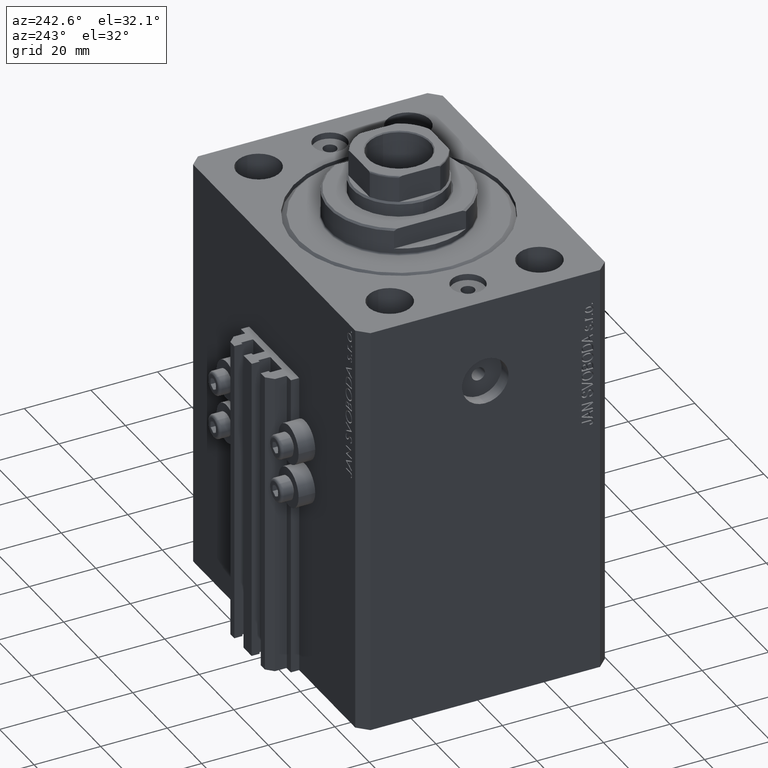
[diagram: clean part render]
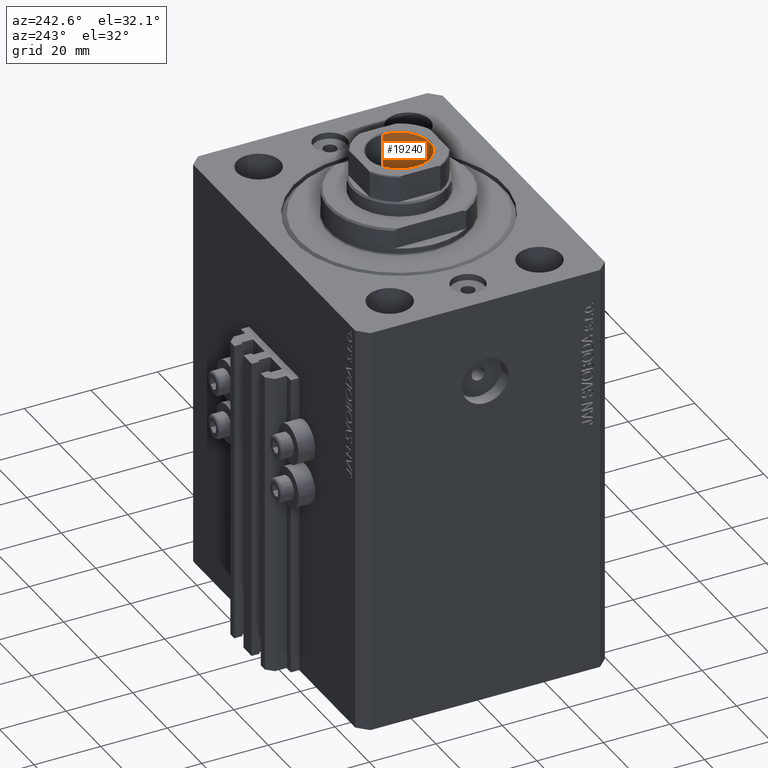
[diagram: same view with one face highlighted and labeled with its STEP entity id]
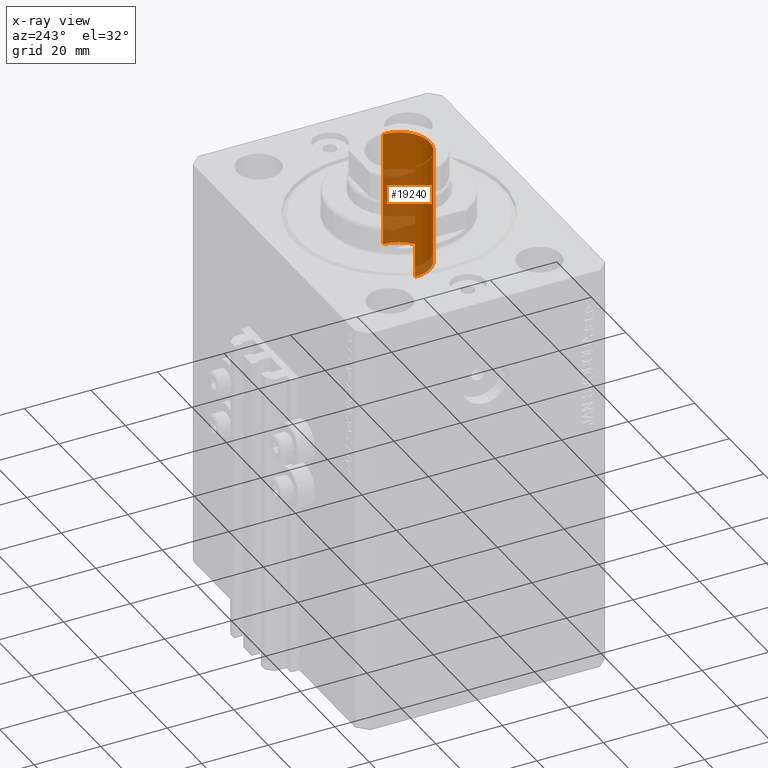
[diagram: x-ray of the same camera — body ghosted, the highlighted face saturated]
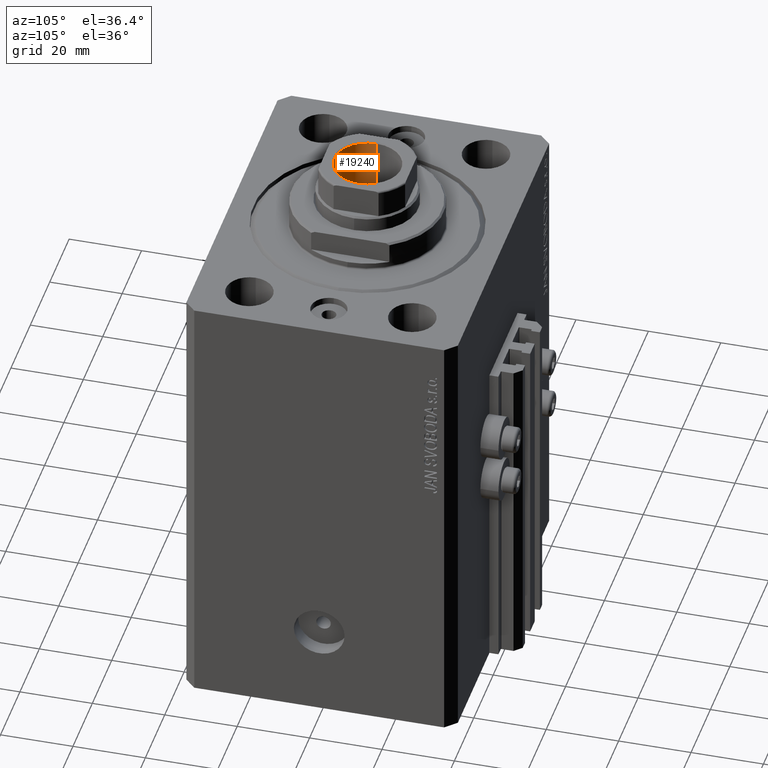
[diagram: same view with one face highlighted and labeled with its STEP entity id]
A machine part, auxiliary view. The second image highlights one B-rep face of the part: STEP entity #19240.
The next image is the same camera in x-ray: the body ghosted, the highlighted face saturated — about 43% of this face is hidden behind the body in this view.
A second angle (auxiliary view) of the same face is appended — the face is thin or edge-on in the first view.
In plain terms, the highlighted cylindrical surface (edge-blend (fillet) strip) has radius 9.25 mm, axis along (0, 0, 1).
Its self-contained STEP definition (entity closure, byte-faithful):
#1257 = DIRECTION ( 'NONE',  ( 0.000000000000000000, 0.000000000000000000, 1.000000000000000000 ) ) ;
#3378 = CARTESIAN_POINT ( 'NONE',  ( 0.000000000000000000, 0.000000000000000000, 133.0999999999999943 ) ) ;
#5438 = ORIENTED_EDGE ( 'NONE', *, *, #10888, .T. ) ;
#7353 = DIRECTION ( 'NONE',  ( 1.000000000000000000, 0.000000000000000000, 0.000000000000000000 ) ) ;
#7636 = EDGE_LOOP ( 'NONE', ( #15118, #5438, #16871, #27750 ) ) ;
#8355 = VERTEX_POINT ( 'NONE', #11924 ) ;
#10303 = DIRECTION ( 'NONE',  ( 1.000000000000000000, 0.000000000000000000, 0.000000000000000000 ) ) ;
#10888 = EDGE_CURVE ( 'NONE', #28634, #8355, #43566, .T. ) ;
#10896 = CARTESIAN_POINT ( 'NONE',  ( 9.249999999999994671, 0.000000000000000000, 98.09999999999999432 ) ) ;
#10902 = CARTESIAN_POINT ( 'NONE',  ( -9.249999999999994671, 1.132798289211300909E-15, 98.09999999999999432 ) ) ;
#11924 = CARTESIAN_POINT ( 'NONE',  ( -9.249999999999996447, 1.132798289211301304E-15, 132.8000000000000114 ) ) ;
#12287 = AXIS2_PLACEMENT_3D ( 'NONE', #3378, #40360, #10303 ) ;
#14288 = CARTESIAN_POINT ( 'NONE',  ( 0.000000000000000000, 0.000000000000000000, 98.09999999999999432 ) ) ;
#14979 = EDGE_CURVE ( 'NONE', #8355, #17881, #15148, .T. ) ;
#15118 = ORIENTED_EDGE ( 'NONE', *, *, #32531, .F. ) ;
#15148 = CIRCLE ( 'NONE', #27341, 9.249999999999996447 ) ;
#16303 = CARTESIAN_POINT ( 'NONE',  ( 9.249999999999996447, 0.000000000000000000, 133.0999999999999943 ) ) ;
#16782 = EDGE_CURVE ( 'NONE', #33753, #17881, #37784, .T. ) ;
#16871 = ORIENTED_EDGE ( 'NONE', *, *, #14979, .T. ) ;
#17881 = VERTEX_POINT ( 'NONE', #18045 ) ;
#17938 = VECTOR ( 'NONE', #18027, 1000.000000000000000 ) ;
#18027 = DIRECTION ( 'NONE',  ( -0.000000000000000000, -0.000000000000000000, 1.000000000000000000 ) ) ;
#18045 = CARTESIAN_POINT ( 'NONE',  ( 9.249999999999996447, 0.000000000000000000, 132.8000000000000114 ) ) ;
#19240 = ADVANCED_FACE ( 'NONE', ( #32968 ), #25791, .F. ) ;
#22296 = CARTESIAN_POINT ( 'NONE',  ( -9.249999999999996447, 1.132798289211301304E-15, 133.0999999999999943 ) ) ;
#25791 = CYLINDRICAL_SURFACE ( 'NONE', #12287, 9.249999999999996447 ) ;
#27341 = AXIS2_PLACEMENT_3D ( 'NONE', #30848, #1257, #41355 ) ;
#27412 = CIRCLE ( 'NONE', #45697, 9.249999999999994671 ) ;
#27750 = ORIENTED_EDGE ( 'NONE', *, *, #16782, .F. ) ;
#28634 = VERTEX_POINT ( 'NONE', #10902 ) ;
#30848 = CARTESIAN_POINT ( 'NONE',  ( 0.000000000000000000, 0.000000000000000000, 132.8000000000000114 ) ) ;
#32531 = EDGE_CURVE ( 'NONE', #28634, #33753, #27412, .T. ) ;
#32968 = FACE_OUTER_BOUND ( 'NONE', #7636, .T. ) ;
#33753 = VERTEX_POINT ( 'NONE', #10896 ) ;
#37784 = LINE ( 'NONE', #16303, #44960 ) ;
#38251 = DIRECTION ( 'NONE',  ( -0.000000000000000000, -0.000000000000000000, 1.000000000000000000 ) ) ;
#40360 = DIRECTION ( 'NONE',  ( -0.000000000000000000, -0.000000000000000000, 1.000000000000000000 ) ) ;
#41355 = DIRECTION ( 'NONE',  ( 1.000000000000000000, 0.000000000000000000, 0.000000000000000000 ) ) ;
#43566 = LINE ( 'NONE', #22296, #17938 ) ;
#43640 = DIRECTION ( 'NONE',  ( -0.000000000000000000, -0.000000000000000000, 1.000000000000000000 ) ) ;
#44960 = VECTOR ( 'NONE', #38251, 1000.000000000000000 ) ;
#45697 = AXIS2_PLACEMENT_3D ( 'NONE', #14288, #43640, #7353 ) ;